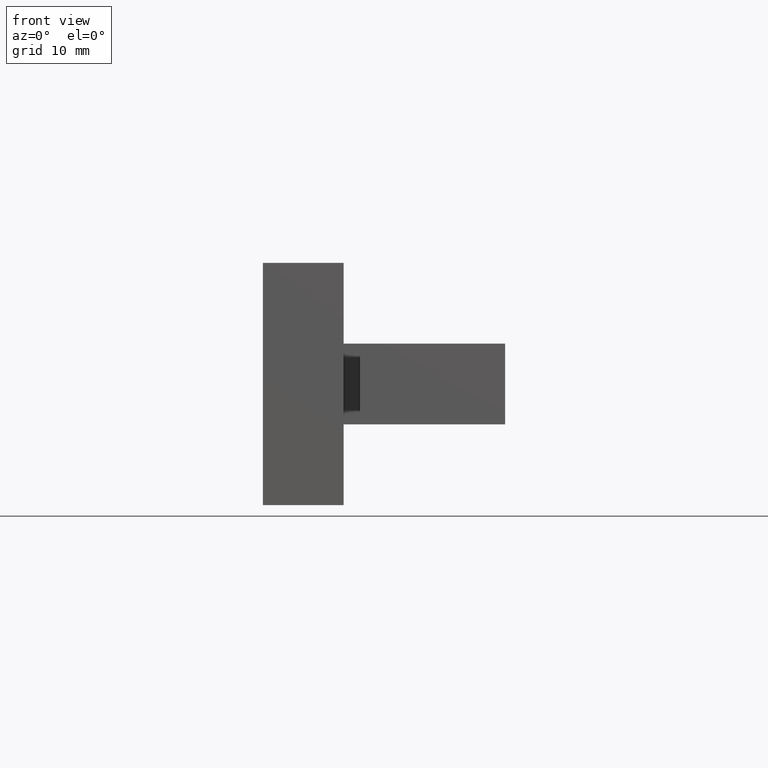
[diagram: clean part render]
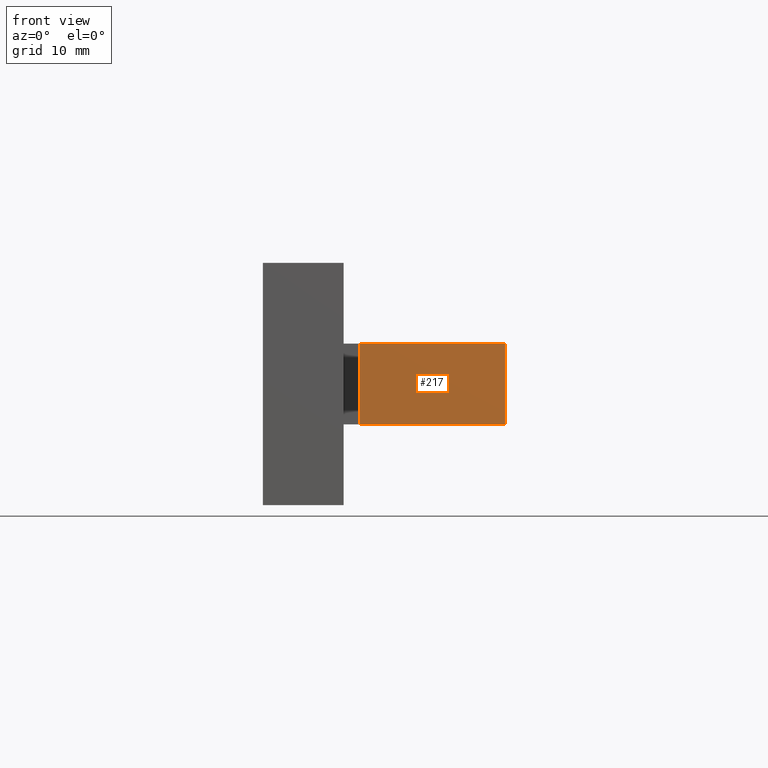
[diagram: same view with one face highlighted and labeled with its STEP entity id]
A machine part, front view. The second image highlights one B-rep face of the part: STEP entity #217.
In plain terms, the highlighted planar face has unit normal (0, -1, 0).
Its self-contained STEP definition (entity closure, byte-faithful):
#27=FACE_OUTER_BOUND('',#40,.T.);
#40=EDGE_LOOP('',(#186,#187,#188,#189));
#59=LINE('',#346,#86);
#64=LINE('',#355,#91);
#67=LINE('',#361,#94);
#68=LINE('',#363,#95);
#86=VECTOR('',#287,10.);
#91=VECTOR('',#294,10.);
#94=VECTOR('',#301,10.);
#95=VECTOR('',#304,10.);
#108=VERTEX_POINT('',#343);
#109=VERTEX_POINT('',#345);
#111=VERTEX_POINT('',#351);
#113=VERTEX_POINT('',#359);
#131=EDGE_CURVE('',#109,#108,#59,.T.);
#136=EDGE_CURVE('',#111,#109,#64,.T.);
#139=EDGE_CURVE('',#108,#113,#67,.T.);
#140=EDGE_CURVE('',#113,#111,#68,.T.);
#186=ORIENTED_EDGE('',*,*,#140,.T.);
#187=ORIENTED_EDGE('',*,*,#136,.T.);
#188=ORIENTED_EDGE('',*,*,#131,.T.);
#189=ORIENTED_EDGE('',*,*,#139,.T.);
#205=PLANE('',#252);
#217=ADVANCED_FACE('',(#27),#205,.T.);
#252=AXIS2_PLACEMENT_3D('',#362,#302,#303);
#287=DIRECTION('',(1.,3.46944695195361E-17,0.));
#294=DIRECTION('',(0.,0.,-1.));
#301=DIRECTION('',(0.,0.,1.));
#302=DIRECTION('center_axis',(3.46944695195361E-17,-1.,0.));
#303=DIRECTION('ref_axis',(0.,0.,-1.));
#304=DIRECTION('',(-1.,-3.46944695195361E-17,0.));
#343=CARTESIAN_POINT('',(0.,0.,-5.));
#345=CARTESIAN_POINT('',(-18.,-6.24500451351651E-16,-5.));
#346=CARTESIAN_POINT('',(0.,0.,-5.));
#351=CARTESIAN_POINT('',(-18.,-6.24500451351651E-16,5.));
#355=CARTESIAN_POINT('',(-18.,-6.24500451351651E-16,0.));
#359=CARTESIAN_POINT('',(0.,0.,5.));
#361=CARTESIAN_POINT('',(0.,0.,0.));
#362=CARTESIAN_POINT('Origin',(0.,0.,0.));
#363=CARTESIAN_POINT('',(0.,0.,5.));